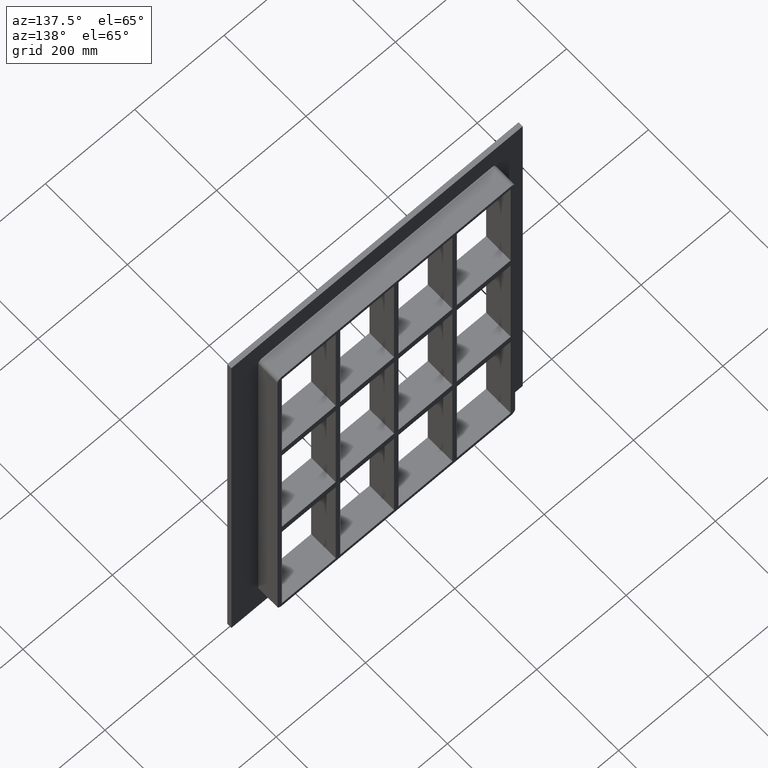
[diagram: clean part render]
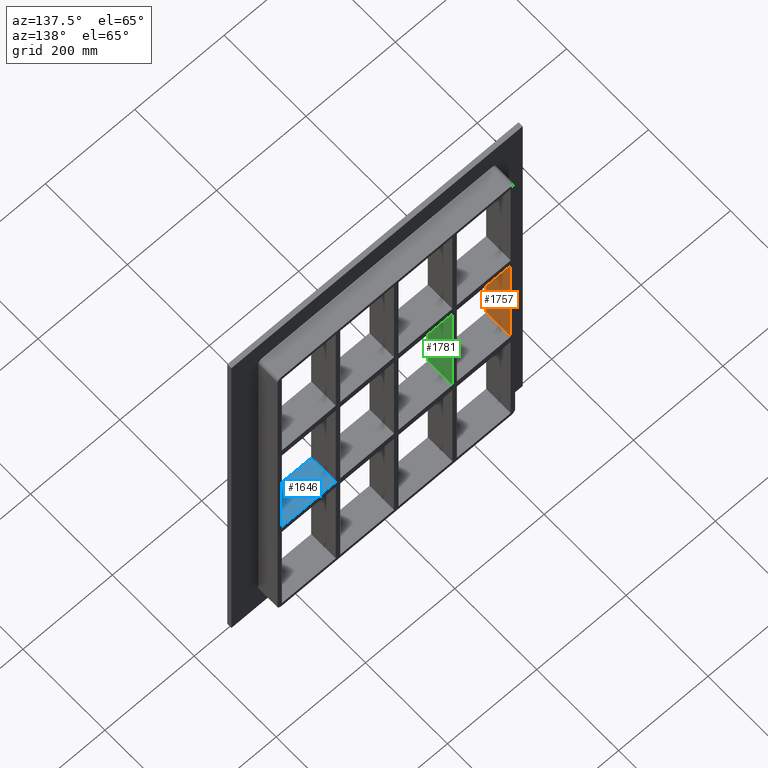
[diagram: same view with three faces highlighted in distinct colors, each labeled with its STEP entity id]
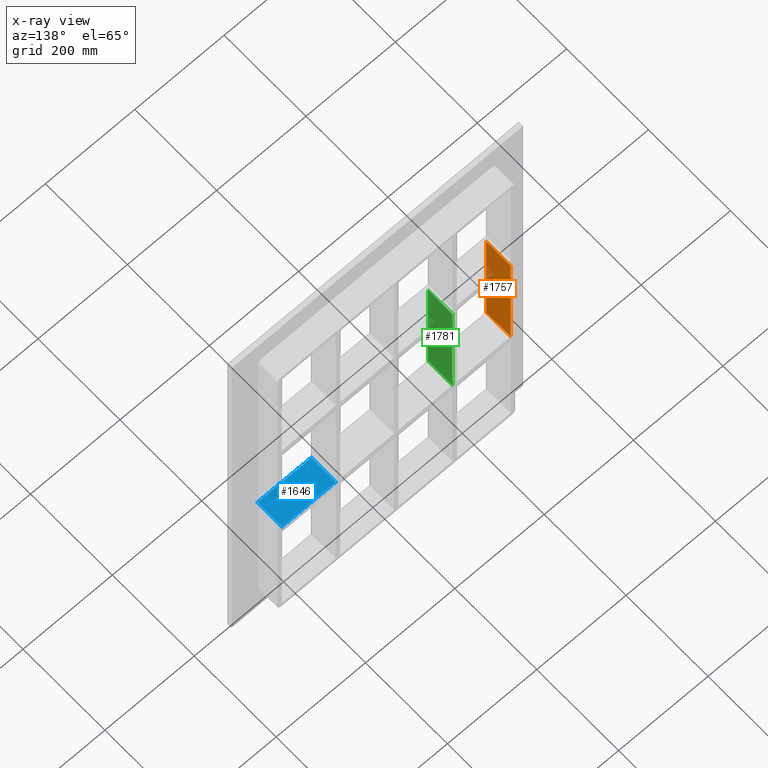
[diagram: x-ray of the same camera — body ghosted, the three highlighted faces saturated]
A machine part, auxiliary view with three faces highlighted in distinct colors.
The next image is the same camera in x-ray (body ghosted, the three faces saturated) — at least one of them is partly hidden behind the body in this view.
Their STEP definitions:

[orange] entity #1757 — the highlighted planar face has unit normal (-1, 0, 0).
#83=CARTESIAN_POINT('',(-255.99999999999969,-3.0,138.99999999999056));
#84=VERTEX_POINT('',#83);
#91=CARTESIAN_POINT('',(-255.99999999999969,57.0,138.99999999999056));
#92=VERTEX_POINT('',#91);
#93=CARTESIAN_POINT('',(-256.0,57.000000000000007,138.99999999999059));
#94=DIRECTION('',(0.0,-1.0,0.0));
#95=VECTOR('',#94,60.000000000000007);
#96=LINE('',#93,#95);
#97=EDGE_CURVE('',#92,#84,#96,.T.);
#773=CARTESIAN_POINT('',(-255.99999999999969,57.0,-139.00000000000006));
#774=VERTEX_POINT('',#773);
#775=CARTESIAN_POINT('',(-256.0,57.0,138.99999999999062));
#776=DIRECTION('',(0.0,0.0,-1.0));
#777=VECTOR('',#776,277.99999999999068);
#778=LINE('',#775,#777);
#779=EDGE_CURVE('',#92,#774,#778,.T.);
#1475=CARTESIAN_POINT('',(-255.99999999999969,-3.0,-139.00000000000006));
#1476=VERTEX_POINT('',#1475);
#1483=CARTESIAN_POINT('',(-256.0,-3.0,-139.00000000000006));
#1484=DIRECTION('',(0.0,0.0,1.0));
#1485=VECTOR('',#1484,277.99999999999068);
#1486=LINE('',#1483,#1485);
#1487=EDGE_CURVE('',#1476,#84,#1486,.T.);
#1736=CARTESIAN_POINT('',(-256.0,-3.0,-139.00000000000006));
#1737=DIRECTION('',(0.0,1.0,0.0));
#1738=VECTOR('',#1737,60.000000000000007);
#1739=LINE('',#1736,#1738);
#1740=EDGE_CURVE('',#1476,#774,#1739,.T.);
#1746=CARTESIAN_POINT('',(-256.0,0.0,-437.0));
#1747=DIRECTION('',(-1.0,0.0,0.0));
#1748=DIRECTION('',(0.0,0.0,1.0));
#1749=AXIS2_PLACEMENT_3D('',#1746,#1747,#1748);
#1750=PLANE('',#1749);
#1751=ORIENTED_EDGE('',*,*,#97,.T.);
#1752=ORIENTED_EDGE('',*,*,#1487,.F.);
#1753=ORIENTED_EDGE('',*,*,#1740,.T.);
#1754=ORIENTED_EDGE('',*,*,#779,.F.);
#1755=EDGE_LOOP('',(#1751,#1752,#1753,#1754));
#1756=FACE_OUTER_BOUND('',#1755,.T.);
#1757=ADVANCED_FACE('',(#1756),#1750,.F.);

[blue] entity #1646 — the highlighted planar face has unit normal (0, 0, 1).
#425=CARTESIAN_POINT('',(255.99999999999991,57.0,-139.00000000000006));
#426=VERTEX_POINT('',#425);
#433=CARTESIAN_POINT('',(255.99999999999991,-3.0,-139.00000000000006));
#434=VERTEX_POINT('',#433);
#435=CARTESIAN_POINT('',(256.0,57.000000000000007,-139.00000000000006));
#436=DIRECTION('',(0.0,-1.0,0.0));
#437=VECTOR('',#436,60.000000000000007);
#438=LINE('',#435,#437);
#439=EDGE_CURVE('',#426,#434,#438,.T.);
#825=CARTESIAN_POINT('',(135.50000000000728,57.0,-139.00000000000006));
#826=VERTEX_POINT('',#825);
#833=CARTESIAN_POINT('',(135.50000000000736,57.0,-139.00000000000006));
#834=DIRECTION('',(1.0,0.0,0.0));
#835=VECTOR('',#834,120.49999999999255);
#836=LINE('',#833,#835);
#837=EDGE_CURVE('',#826,#426,#836,.T.);
#1101=CARTESIAN_POINT('',(135.50000000000728,-3.0,-139.00000000000006));
#1102=VERTEX_POINT('',#1101);
#1109=CARTESIAN_POINT('',(135.5000000000073,57.0,-139.00000000000006));
#1110=DIRECTION('',(0.0,-1.0,0.0));
#1111=VECTOR('',#1110,60.0);
#1112=LINE('',#1109,#1111);
#1113=EDGE_CURVE('',#826,#1102,#1112,.T.);
#1412=CARTESIAN_POINT('',(135.50000000000736,-3.0,-139.00000000000006));
#1413=DIRECTION('',(1.0,0.0,0.0));
#1414=VECTOR('',#1413,120.49999999999255);
#1415=LINE('',#1412,#1414);
#1416=EDGE_CURVE('',#1102,#434,#1415,.T.);
#1635=CARTESIAN_POINT('',(-255.99999999999969,-3.0,-139.00000000000006));
#1636=DIRECTION('',(0.0,0.0,1.0));
#1637=DIRECTION('',(1.0,0.0,0.0));
#1638=AXIS2_PLACEMENT_3D('',#1635,#1636,#1637);
#1639=PLANE('',#1638);
#1640=ORIENTED_EDGE('',*,*,#1113,.T.);
#1641=ORIENTED_EDGE('',*,*,#1416,.T.);
#1642=ORIENTED_EDGE('',*,*,#439,.F.);
#1643=ORIENTED_EDGE('',*,*,#837,.F.);
#1644=EDGE_LOOP('',(#1640,#1641,#1642,#1643));
#1645=FACE_OUTER_BOUND('',#1644,.T.);
#1646=ADVANCED_FACE('',(#1645),#1639,.T.);

[green] entity #1781 — the highlighted planar face has unit normal (1, 0, 0).
#123=CARTESIAN_POINT('',(-125.49999999999272,-3.0,138.99999999999062));
#124=VERTEX_POINT('',#123);
#131=CARTESIAN_POINT('',(-125.49999999999272,57.0,138.99999999999062));
#132=VERTEX_POINT('',#131);
#133=CARTESIAN_POINT('',(-125.49999999999272,57.0,138.99999999999062));
#134=DIRECTION('',(0.0,-1.0,0.0));
#135=VECTOR('',#134,60.0);
#136=LINE('',#133,#135);
#137=EDGE_CURVE('',#132,#124,#136,.T.);
#868=CARTESIAN_POINT('',(-125.49999999999272,57.0,-139.00000000000006));
#869=VERTEX_POINT('',#868);
#870=CARTESIAN_POINT('',(-125.49999999999272,57.0,138.99999999999056));
#871=DIRECTION('',(0.0,0.0,-1.0));
#872=VECTOR('',#871,277.99999999999068);
#873=LINE('',#870,#872);
#874=EDGE_CURVE('',#132,#869,#873,.T.);
#1434=CARTESIAN_POINT('',(-125.49999999999272,-3.0,-139.00000000000006));
#1435=VERTEX_POINT('',#1434);
#1442=CARTESIAN_POINT('',(-125.49999999999272,-3.0,138.99999999999056));
#1443=DIRECTION('',(0.0,0.0,-1.0));
#1444=VECTOR('',#1443,277.99999999999068);
#1445=LINE('',#1442,#1444);
#1446=EDGE_CURVE('',#124,#1435,#1445,.T.);
#1625=CARTESIAN_POINT('',(-125.49999999999272,-3.0,-139.00000000000006));
#1626=DIRECTION('',(0.0,1.0,0.0));
#1627=VECTOR('',#1626,60.0);
#1628=LINE('',#1625,#1627);
#1629=EDGE_CURVE('',#1435,#869,#1628,.T.);
#1770=CARTESIAN_POINT('',(-125.49999999999272,-3.0,437.0));
#1771=DIRECTION('',(1.0,0.0,0.0));
#1772=DIRECTION('',(0.0,0.0,-1.0));
#1773=AXIS2_PLACEMENT_3D('',#1770,#1771,#1772);
#1774=PLANE('',#1773);
#1775=ORIENTED_EDGE('',*,*,#137,.T.);
#1776=ORIENTED_EDGE('',*,*,#1446,.T.);
#1777=ORIENTED_EDGE('',*,*,#1629,.T.);
#1778=ORIENTED_EDGE('',*,*,#874,.F.);
#1779=EDGE_LOOP('',(#1775,#1776,#1777,#1778));
#1780=FACE_OUTER_BOUND('',#1779,.T.);
#1781=ADVANCED_FACE('',(#1780),#1774,.T.);